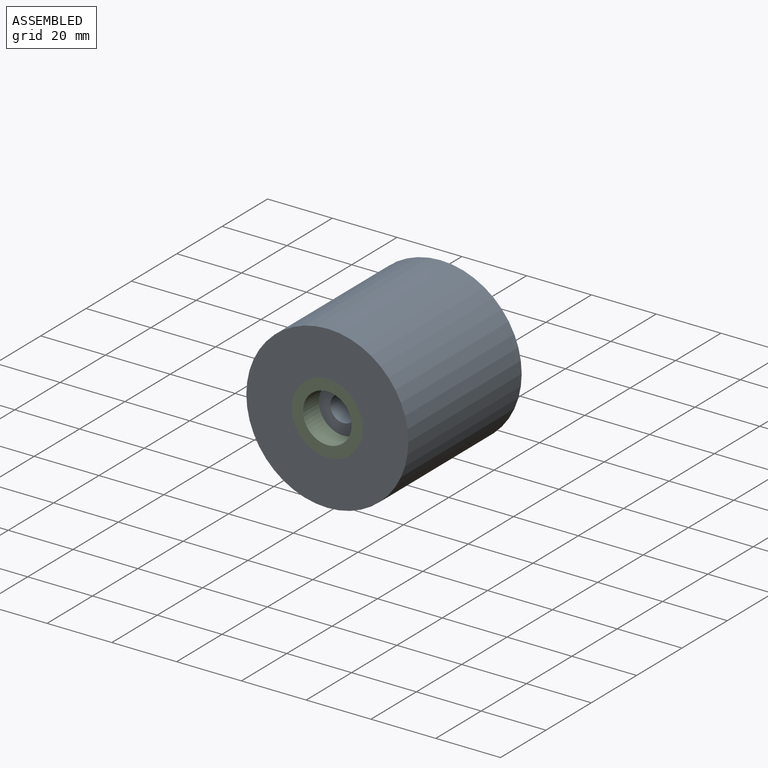
[diagram: assembled view]
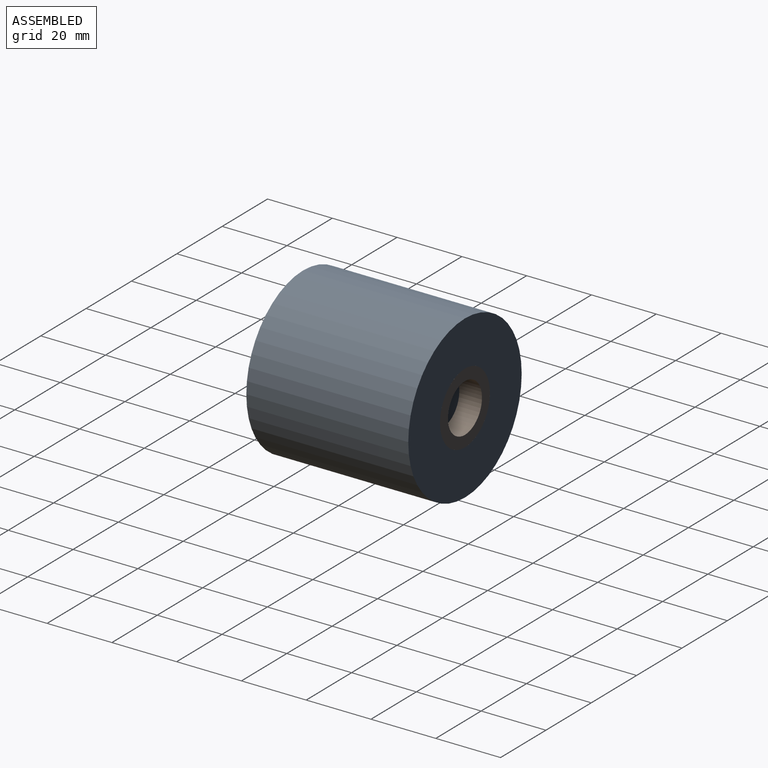
[diagram: assembled view, second angle]
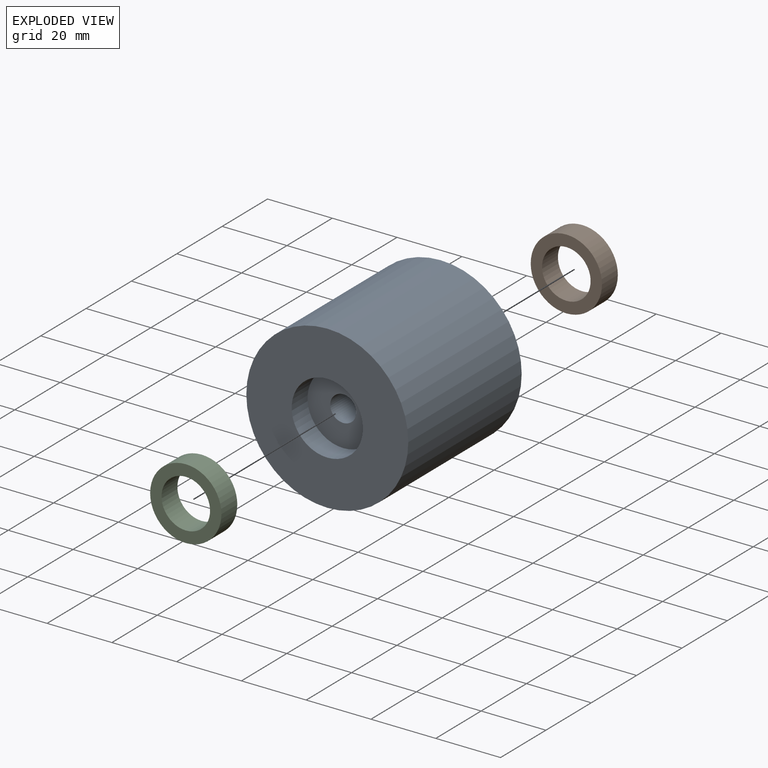
[diagram: exploded view]
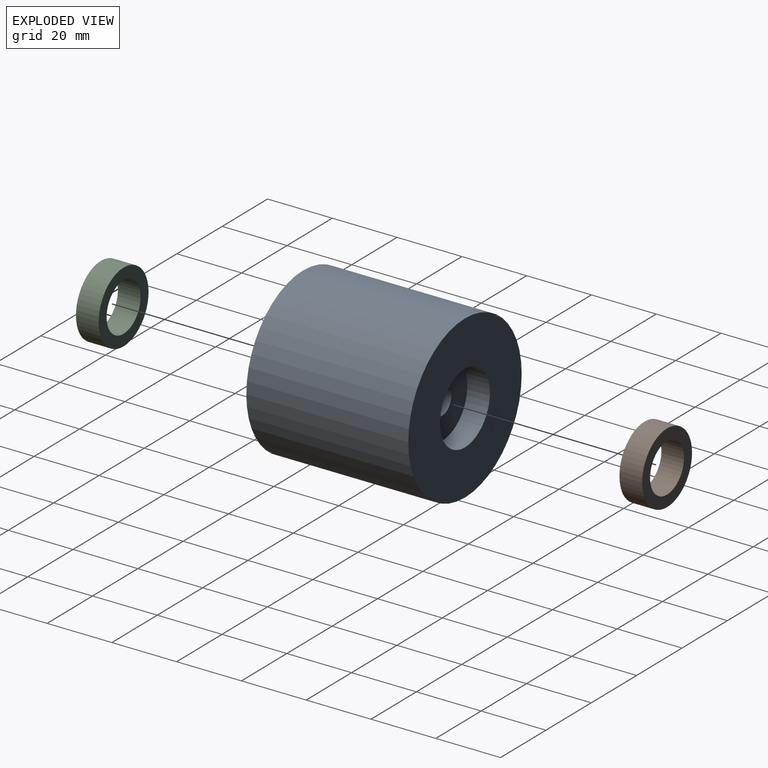
[diagram: exploded view, second angle]
ASSEMBLY  parts=3 mates=2
PART A: 8 faces, bbox 50x50x50 mm
  f0: cylinder r=4mm len=36mm, axis (0,-1,0), area 904.8mm2, adj f4,f6
  f1: cylinder r=25mm len=50mm, axis (0,1,0), area 7854mm2, adj f2,f3
  f2: plane 50x50mm, normal (0,-1,0), area 1583.4mm2, adj f1,f5
  f3: plane 50x50mm, normal (0,1,0), area 1583.4mm2, adj f1,f7
  f4: plane 22x22mm, normal (0,-1,0), area 329.9mm2, adj f0,f5
  f5: cylinder r=11mm len=22mm, axis (0,-1,0), area 483.8mm2, adj f2,f4
  f6: plane 22x22mm, normal (0,1,0), area 329.9mm2, adj f0,f7
  f7: cylinder r=11mm len=22mm, axis (0,1,0), area 483.8mm2, adj f3,f6
PART B: 4 faces, bbox 22x7x22 mm
  f0: cylinder r=7.5mm len=15mm, axis (0,1,0), area 329.9mm2, adj f2,f3
  f1: cylinder r=11mm len=22mm, axis (0,1,0), area 483.8mm2, adj f2,f3
  f2: plane 22x22mm, normal (0,-1,0), area 203.4mm2, adj f0,f1
  f3: plane 22x22mm, normal (0,1,0), area 203.4mm2, adj f0,f1
PART C: same geometry as B
PLACE A at identity fixed
PLACE B t=(0,25,0)mm
PLACE C t=(0,-18,0)mm
MATE fastened C.f1 <-> A.f0  axis (0,1,0) through (0,-18,0)mm
MATE fastened B.f1 <-> A.f7  axis (0,-1,0) through (0,18,0)mm
